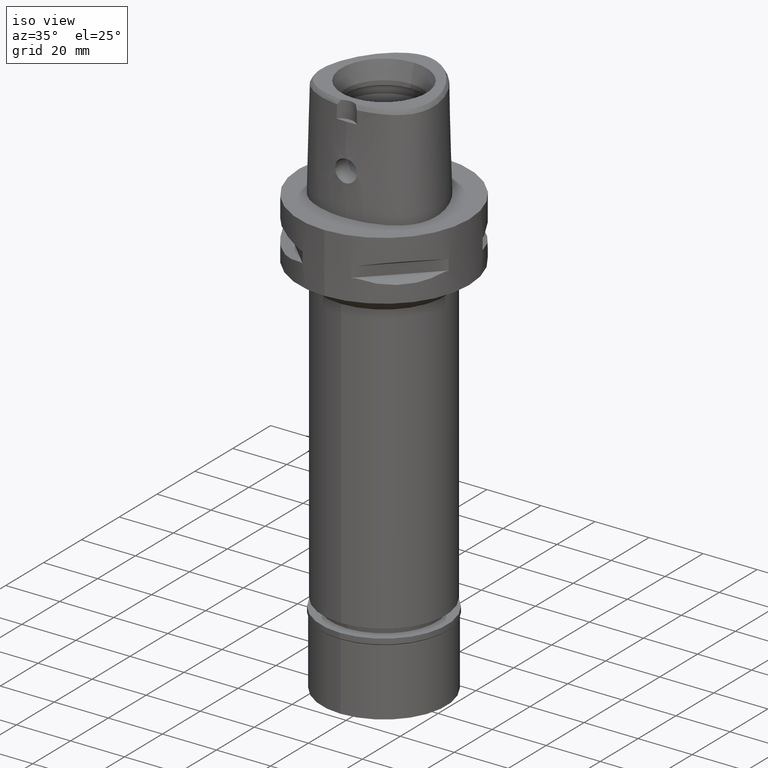
[diagram: clean part render]
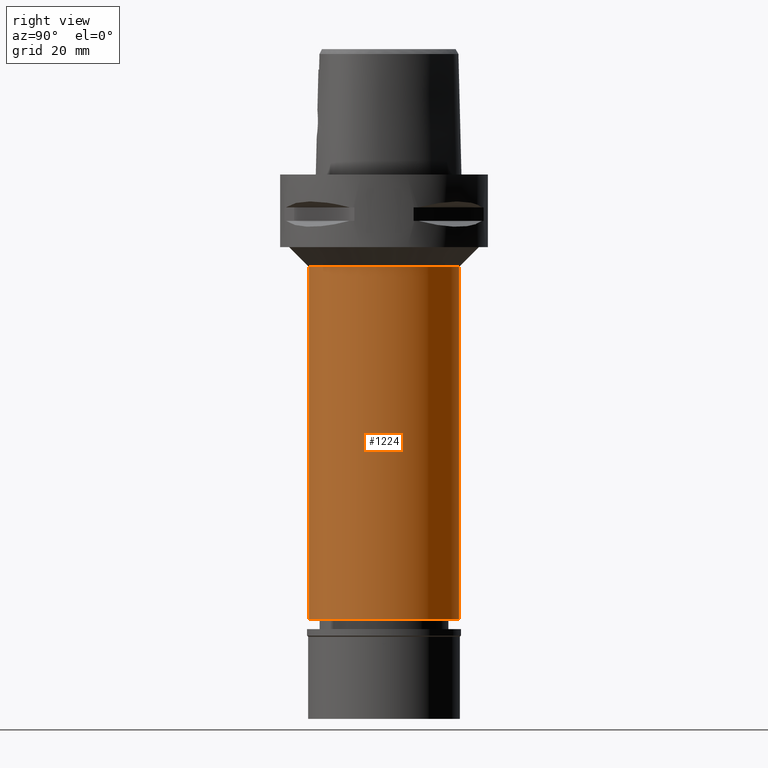
[diagram: tour spotlight — one face highlighted and labeled with its STEP entity id]
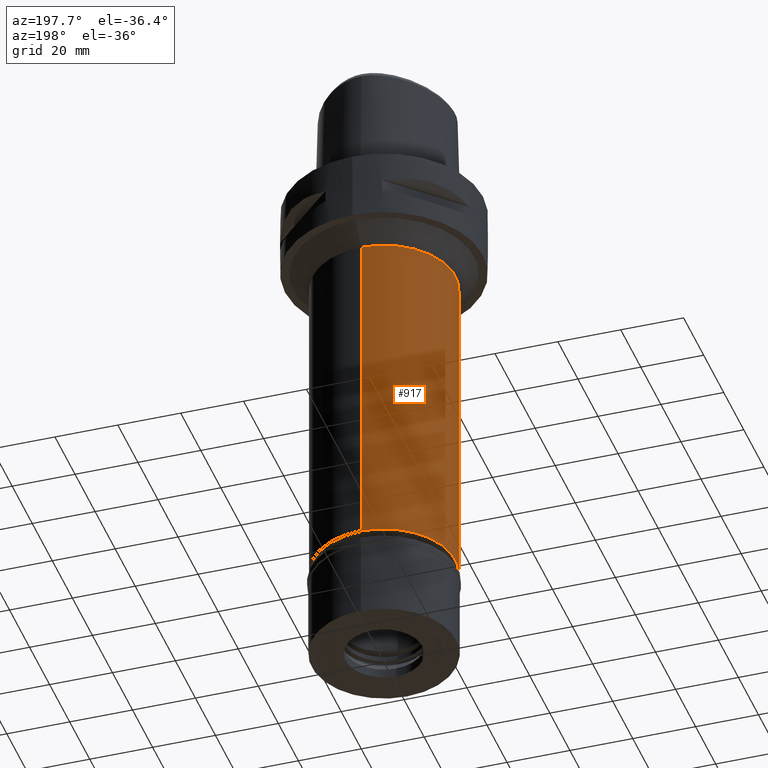
[diagram: tour spotlight — one face highlighted and labeled with its STEP entity id]
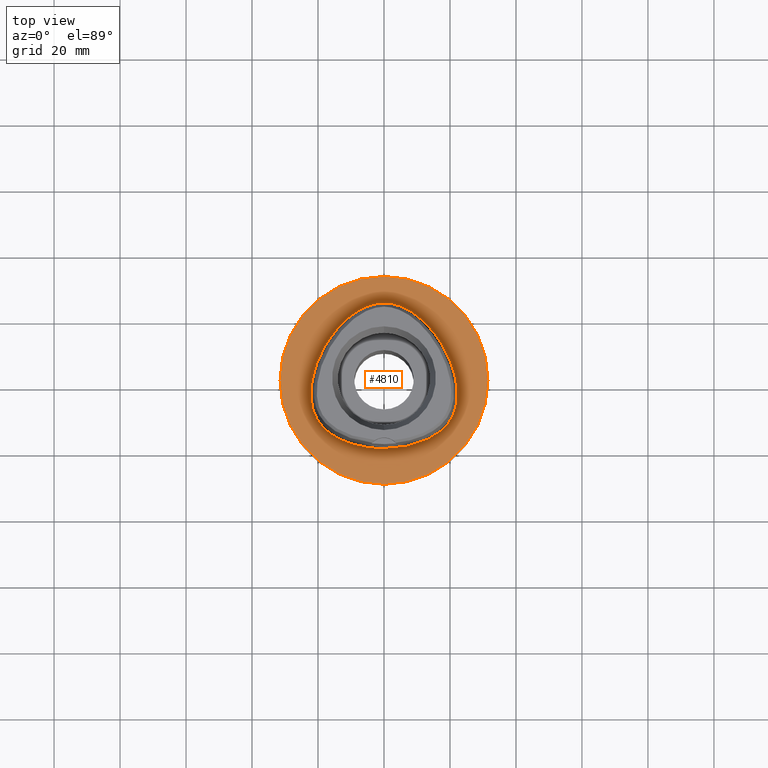
[diagram: tour spotlight — one face highlighted and labeled with its STEP entity id]
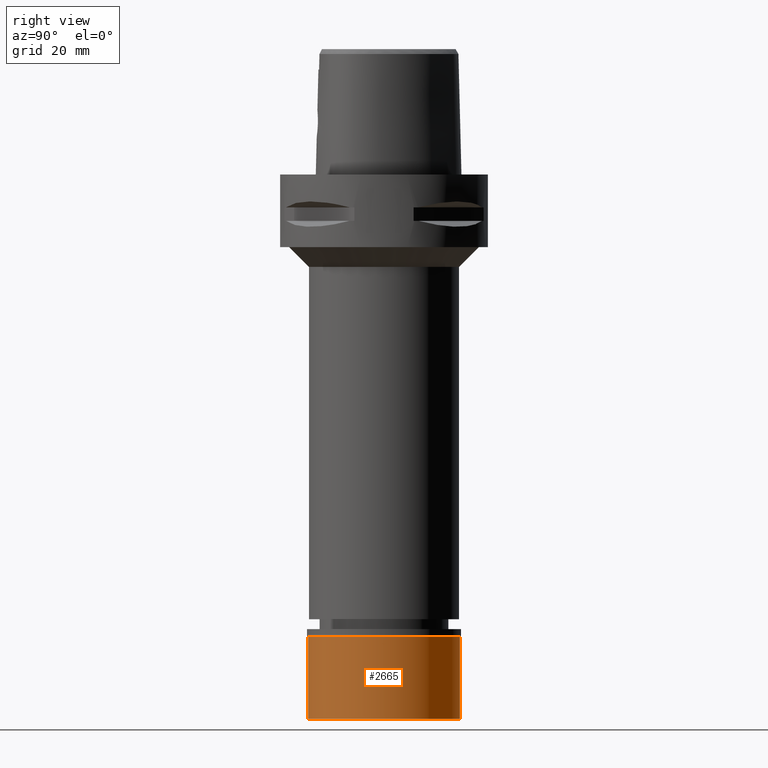
[diagram: tour spotlight — one face highlighted and labeled with its STEP entity id]
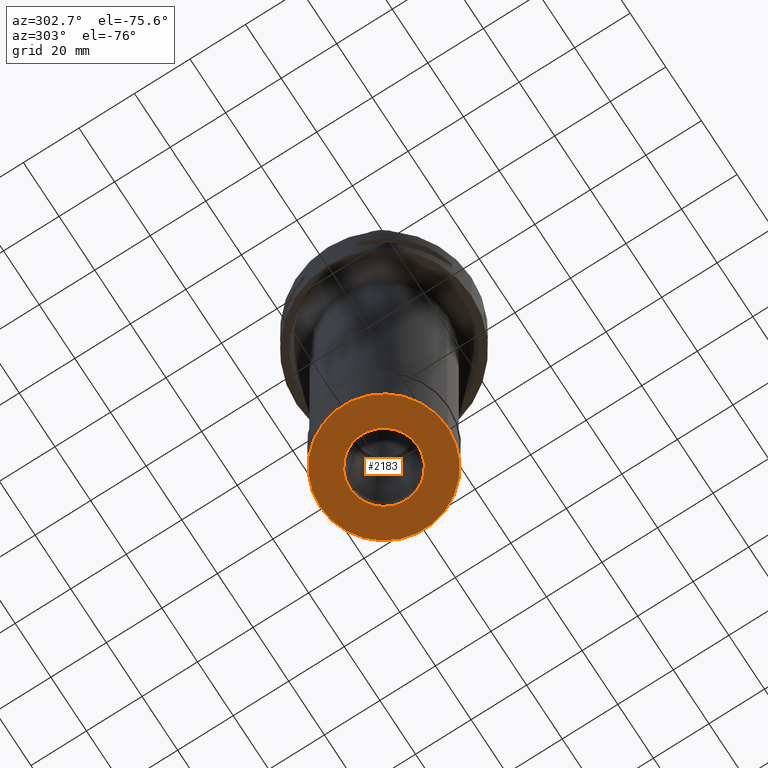
[diagram: tour spotlight — one face highlighted and labeled with its STEP entity id]
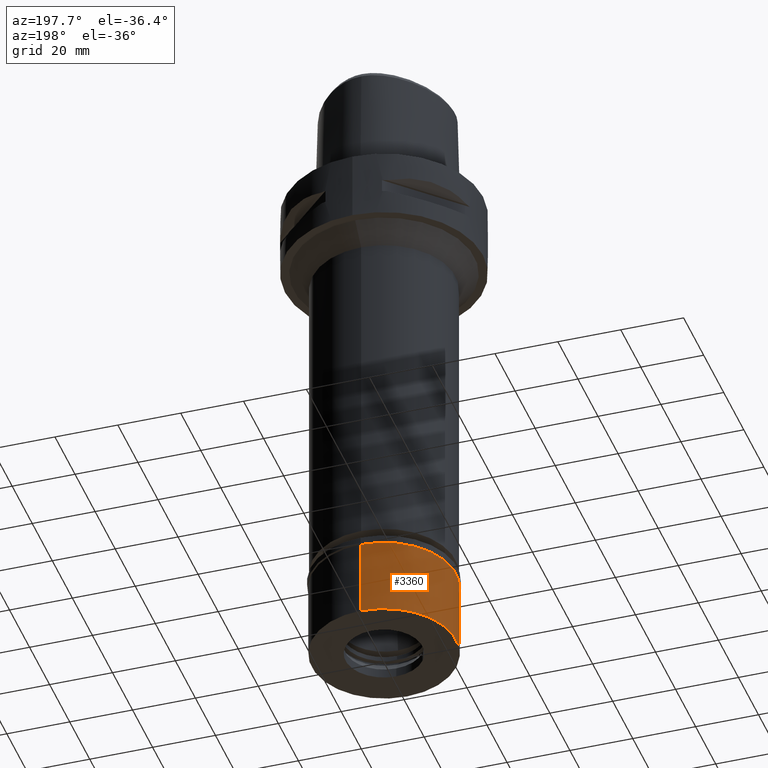
[diagram: tour spotlight — one face highlighted and labeled with its STEP entity id]
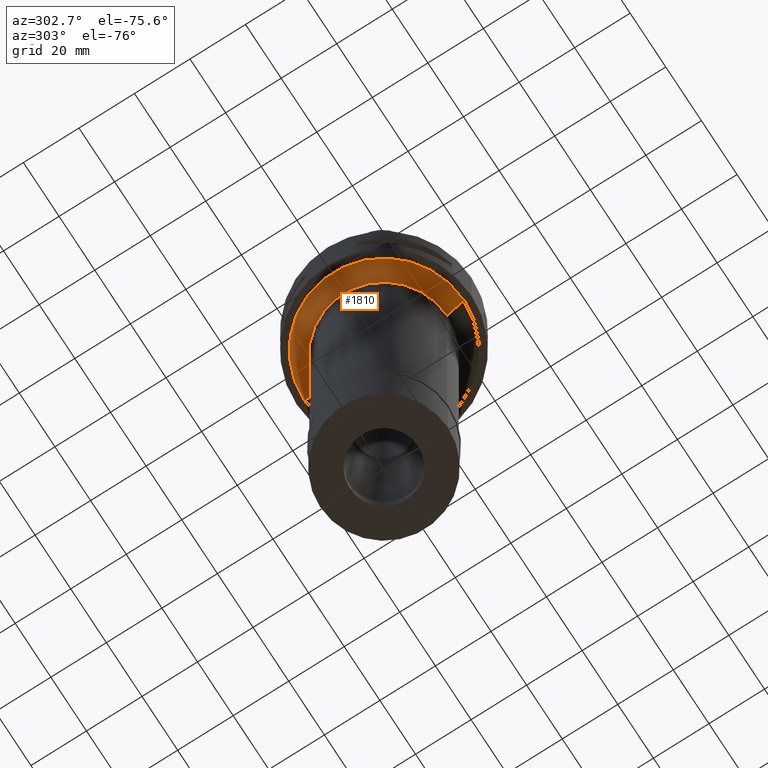
[diagram: tour spotlight — one face highlighted and labeled with its STEP entity id]
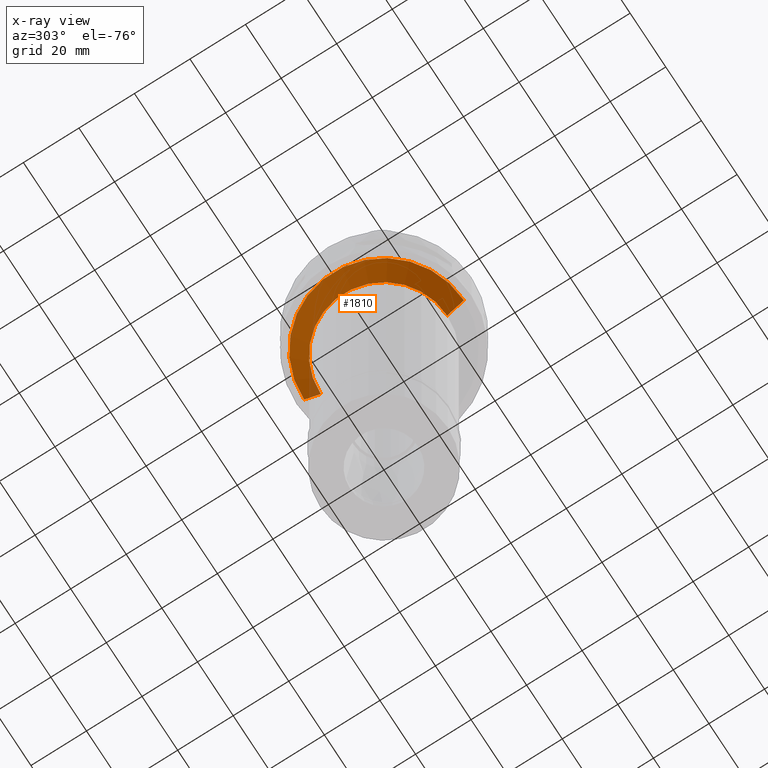
[diagram: x-ray of the same camera — body ghosted, this tour face saturated]
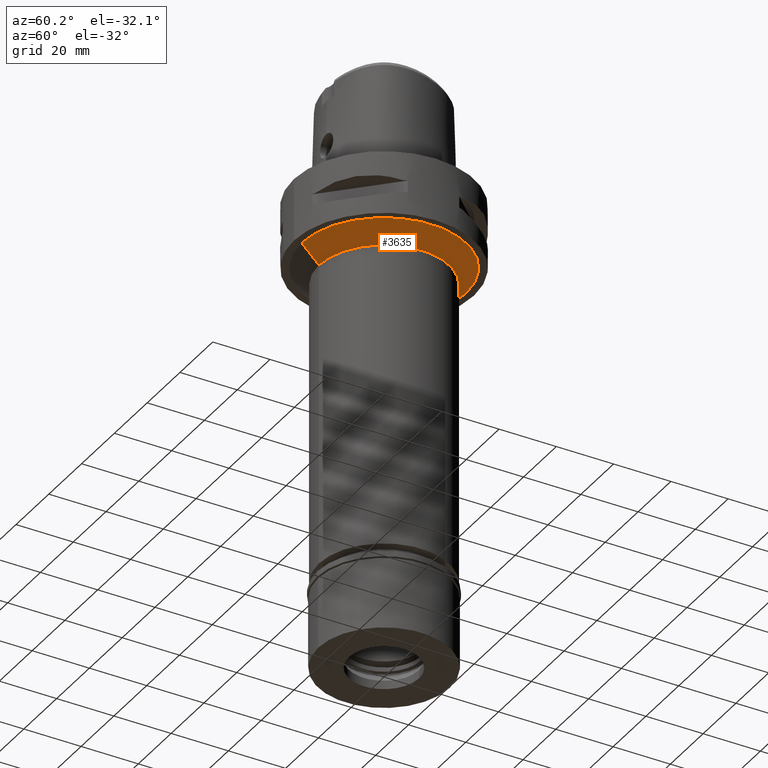
[diagram: tour spotlight — one face highlighted and labeled with its STEP entity id]
A machine part: a face-by-face anatomy tour. The part has 95 B-rep faces; the first image is the clean iso view, then the 8 largest visible faces are spotlighted one at a time (largest first), each with its STEP entity span.

Face 1 — right view, entity #1224. In plain terms, the highlighted cylindrical surface (partial cylindrical patch) has radius 22.75 mm, axis along (0, 0, -1).
Definition (entity closure, byte-faithful):
#91 = VECTOR ( 'NONE', #986, 1000.000000000000000 ) ;
#332 = DIRECTION ( 'NONE',  ( 0.0000000000000000000, -1.000000000000000000, 0.0000000000000000000 ) ) ;
#386 = AXIS2_PLACEMENT_3D ( 'NONE', #551, #2056, #899 ) ;
#402 = DIRECTION ( 'NONE',  ( 0.0000000000000000000, 0.0000000000000000000, -1.000000000000000000 ) ) ;
#407 = VECTOR ( 'NONE', #2217, 1000.000000000000000 ) ;
#551 = CARTESIAN_POINT ( 'NONE',  ( 0.0000000000000000000, 0.0000000000000000000, -28.00000000000000000 ) ) ;
#554 = AXIS2_PLACEMENT_3D ( 'NONE', #4143, #402, #1949 ) ;
#587 = ORIENTED_EDGE ( 'NONE', *, *, #2922, .T. ) ;
#669 = LINE ( 'NONE', #3377, #407 ) ;
#788 = CIRCLE ( 'NONE', #386, 22.75000000000000000 ) ;
#899 = DIRECTION ( 'NONE',  ( 0.0000000000000000000, 1.000000000000000000, 0.0000000000000000000 ) ) ;
#986 = DIRECTION ( 'NONE',  ( 0.0000000000000000000, 0.0000000000000000000, -1.000000000000000000 ) ) ;
#1032 = LINE ( 'NONE', #1386, #91 ) ;
#1049 = ORIENTED_EDGE ( 'NONE', *, *, #3112, .T. ) ;
#1219 = EDGE_CURVE ( 'NONE', #4034, #3096, #669, .T. ) ;
#1224 = ADVANCED_FACE ( 'NONE', ( #2321 ), #3786, .T. ) ;
#1386 = CARTESIAN_POINT ( 'NONE',  ( 0.0000000000000000000, 22.75000000000000000, -28.00000000000000000 ) ) ;
#1508 = CARTESIAN_POINT ( 'NONE',  ( 0.0000000000000000000, 22.75000000000000000, -28.00000000000000000 ) ) ;
#1823 = EDGE_LOOP ( 'NONE', ( #587, #2517, #1049, #4809 ) ) ;
#1949 = DIRECTION ( 'NONE',  ( 0.0000000000000000000, -1.000000000000000000, 0.0000000000000000000 ) ) ;
#2056 = DIRECTION ( 'NONE',  ( 0.0000000000000000000, 0.0000000000000000000, -1.000000000000000000 ) ) ;
#2090 = EDGE_CURVE ( 'NONE', #4462, #2373, #1032, .T. ) ;
#2217 = DIRECTION ( 'NONE',  ( 0.0000000000000000000, 0.0000000000000000000, -1.000000000000000000 ) ) ;
#2321 = FACE_OUTER_BOUND ( 'NONE', #1823, .T. ) ;
#2373 = VERTEX_POINT ( 'NONE', #2686 ) ;
#2517 = ORIENTED_EDGE ( 'NONE', *, *, #1219, .T. ) ;
#2686 = CARTESIAN_POINT ( 'NONE',  ( 0.0000000000000000000, 22.75000000000000000, -134.8000000000000114 ) ) ;
#2922 = EDGE_CURVE ( 'NONE', #4462, #4034, #788, .T. ) ;
#3096 = VERTEX_POINT ( 'NONE', #4026 ) ;
#3112 = EDGE_CURVE ( 'NONE', #3096, #2373, #4479, .T. ) ;
#3377 = CARTESIAN_POINT ( 'NONE',  ( 0.0000000000000000000, -22.75000000000000000, -28.00000000000000000 ) ) ;
#3387 = CARTESIAN_POINT ( 'NONE',  ( 0.0000000000000000000, -22.75000000000000000, -28.00000000000000000 ) ) ;
#3604 = AXIS2_PLACEMENT_3D ( 'NONE', #4146, #4432, #332 ) ;
#3786 = CYLINDRICAL_SURFACE ( 'NONE', #554, 22.75000000000000000 ) ;
#4026 = CARTESIAN_POINT ( 'NONE',  ( 0.0000000000000000000, -22.75000000000000000, -134.8000000000000114 ) ) ;
#4034 = VERTEX_POINT ( 'NONE', #3387 ) ;
#4143 = CARTESIAN_POINT ( 'NONE',  ( 0.0000000000000000000, 0.0000000000000000000, 7.700000000000000178 ) ) ;
#4146 = CARTESIAN_POINT ( 'NONE',  ( 0.0000000000000000000, 0.0000000000000000000, -134.8000000000000114 ) ) ;
#4432 = DIRECTION ( 'NONE',  ( 0.0000000000000000000, 0.0000000000000000000, 1.000000000000000000 ) ) ;
#4462 = VERTEX_POINT ( 'NONE', #1508 ) ;
#4479 = CIRCLE ( 'NONE', #3604, 22.75000000000000000 ) ;
#4809 = ORIENTED_EDGE ( 'NONE', *, *, #2090, .F. ) ;

Face 2 — auxiliary view, entity #917. In plain terms, the highlighted cylindrical surface (partial cylindrical patch) has radius 22.75 mm, axis along (0, 0, -1).
Definition (entity closure, byte-faithful):
#21 = DIRECTION ( 'NONE',  ( 0.0000000000000000000, 0.0000000000000000000, -1.000000000000000000 ) ) ;
#91 = VECTOR ( 'NONE', #986, 1000.000000000000000 ) ;
#139 = DIRECTION ( 'NONE',  ( 0.0000000000000000000, 0.0000000000000000000, 1.000000000000000000 ) ) ;
#330 = EDGE_CURVE ( 'NONE', #4034, #4462, #2425, .T. ) ;
#407 = VECTOR ( 'NONE', #2217, 1000.000000000000000 ) ;
#455 = CARTESIAN_POINT ( 'NONE',  ( 0.0000000000000000000, 0.0000000000000000000, 7.700000000000000178 ) ) ;
#594 = DIRECTION ( 'NONE',  ( 0.0000000000000000000, 0.0000000000000000000, -1.000000000000000000 ) ) ;
#634 = AXIS2_PLACEMENT_3D ( 'NONE', #455, #594, #4798 ) ;
#669 = LINE ( 'NONE', #3377, #407 ) ;
#895 = AXIS2_PLACEMENT_3D ( 'NONE', #2049, #139, #3179 ) ;
#917 = ADVANCED_FACE ( 'NONE', ( #2852 ), #2478, .T. ) ;
#986 = DIRECTION ( 'NONE',  ( 0.0000000000000000000, 0.0000000000000000000, -1.000000000000000000 ) ) ;
#1032 = LINE ( 'NONE', #1386, #91 ) ;
#1219 = EDGE_CURVE ( 'NONE', #4034, #3096, #669, .T. ) ;
#1249 = ORIENTED_EDGE ( 'NONE', *, *, #1219, .F. ) ;
#1372 = CIRCLE ( 'NONE', #895, 22.75000000000000000 ) ;
#1374 = EDGE_CURVE ( 'NONE', #2373, #3096, #1372, .T. ) ;
#1386 = CARTESIAN_POINT ( 'NONE',  ( 0.0000000000000000000, 22.75000000000000000, -28.00000000000000000 ) ) ;
#1508 = CARTESIAN_POINT ( 'NONE',  ( 0.0000000000000000000, 22.75000000000000000, -28.00000000000000000 ) ) ;
#1580 = EDGE_LOOP ( 'NONE', ( #3599, #1249, #3648, #1946 ) ) ;
#1616 = AXIS2_PLACEMENT_3D ( 'NONE', #3429, #21, #4672 ) ;
#1946 = ORIENTED_EDGE ( 'NONE', *, *, #2090, .T. ) ;
#2049 = CARTESIAN_POINT ( 'NONE',  ( 0.0000000000000000000, 0.0000000000000000000, -134.8000000000000114 ) ) ;
#2090 = EDGE_CURVE ( 'NONE', #4462, #2373, #1032, .T. ) ;
#2217 = DIRECTION ( 'NONE',  ( 0.0000000000000000000, 0.0000000000000000000, -1.000000000000000000 ) ) ;
#2373 = VERTEX_POINT ( 'NONE', #2686 ) ;
#2425 = CIRCLE ( 'NONE', #1616, 22.75000000000000000 ) ;
#2478 = CYLINDRICAL_SURFACE ( 'NONE', #634, 22.75000000000000000 ) ;
#2686 = CARTESIAN_POINT ( 'NONE',  ( 0.0000000000000000000, 22.75000000000000000, -134.8000000000000114 ) ) ;
#2852 = FACE_OUTER_BOUND ( 'NONE', #1580, .T. ) ;
#3096 = VERTEX_POINT ( 'NONE', #4026 ) ;
#3179 = DIRECTION ( 'NONE',  ( 0.0000000000000000000, 1.000000000000000000, 0.0000000000000000000 ) ) ;
#3377 = CARTESIAN_POINT ( 'NONE',  ( 0.0000000000000000000, -22.75000000000000000, -28.00000000000000000 ) ) ;
#3387 = CARTESIAN_POINT ( 'NONE',  ( 0.0000000000000000000, -22.75000000000000000, -28.00000000000000000 ) ) ;
#3429 = CARTESIAN_POINT ( 'NONE',  ( 0.0000000000000000000, 0.0000000000000000000, -28.00000000000000000 ) ) ;
#3599 = ORIENTED_EDGE ( 'NONE', *, *, #1374, .T. ) ;
#3648 = ORIENTED_EDGE ( 'NONE', *, *, #330, .T. ) ;
#4026 = CARTESIAN_POINT ( 'NONE',  ( 0.0000000000000000000, -22.75000000000000000, -134.8000000000000114 ) ) ;
#4034 = VERTEX_POINT ( 'NONE', #3387 ) ;
#4462 = VERTEX_POINT ( 'NONE', #1508 ) ;
#4672 = DIRECTION ( 'NONE',  ( 0.0000000000000000000, -1.000000000000000000, 0.0000000000000000000 ) ) ;
#4798 = DIRECTION ( 'NONE',  ( 0.0000000000000000000, -1.000000000000000000, 0.0000000000000000000 ) ) ;

Face 3 — top view, entity #4810. In plain terms, the highlighted planar face has unit normal (0, 0, -1).
Definition (entity closure, byte-faithful):
#149 = DIRECTION ( 'NONE',  ( 0.0000000000000000000, 0.0000000000000000000, -1.000000000000000000 ) ) ;
#277 = CARTESIAN_POINT ( 'NONE',  ( -20.74942743326078798, 4.657187508816051036, -1.034246440145001125E-06 ) ) ;
#300 = CARTESIAN_POINT ( 'NONE',  ( 21.97832647786460925, -0.2810937500000018630, -1.531435568635775013E-14 ) ) ;
#311 = AXIS2_PLACEMENT_3D ( 'NONE', #1708, #149, #3622 ) ;
#318 = VERTEX_POINT ( 'NONE', #2672 ) ;
#419 = CARTESIAN_POINT ( 'NONE',  ( 0.0000000000000000000, 0.0000000000000000000, 0.0000000000000000000 ) ) ;
#425 = CARTESIAN_POINT ( 'NONE',  ( 2.564517726975463763, 23.29328124999227256, -1.531435568635775013E-14 ) ) ;
#542 = CIRCLE ( 'NONE', #311, 31.50000000000000000 ) ;
#637 = ORIENTED_EDGE ( 'NONE', *, *, #3810, .F. ) ;
#643 = CARTESIAN_POINT ( 'NONE',  ( -20.34961800800771314, -11.74885743481933531, -1.034246440145001125E-06 ) ) ;
#668 = CARTESIAN_POINT ( 'NONE',  ( 20.93173252212098134, -10.60431640624750216, -1.531435568635775013E-14 ) ) ;
#689 = CARTESIAN_POINT ( 'NONE',  ( -7.571159447450471980, 21.31457033488066699, -1.034246440145001125E-06 ) ) ;
#803 = CARTESIAN_POINT ( 'NONE',  ( 5.098437017284251027, 22.52602539062982601, -1.531435568635775013E-14 ) ) ;
#827 = CARTESIAN_POINT ( 'NONE',  ( -2.113823674601348124, -20.67500002585100560, -1.034246440145001125E-06 ) ) ;
#996 = VERTEX_POINT ( 'NONE', #2178 ) ;
#1029 = CARTESIAN_POINT ( 'NONE',  ( -22.05732876892827576, -6.847636722443549040, -1.034246440145001125E-06 ) ) ;
#1063 = B_SPLINE_CURVE_WITH_KNOTS ( 'NONE', 3,
 ( #2667, #3809, #3350, #1948, #3064, #1541, #4606, #3456, #4116, #668, #2216, #1457, #3731, #300, #2986, #4715, #3867, #2015, #4273, #803, #425, #4643, #2429 ),
 .UNSPECIFIED., .F., .F.,
 ( 4, 1, 1, 1, 1, 1, 1, 1, 1, 1, 1, 1, 1, 1, 1, 1, 1, 1, 1, 1, 4 ),
 ( 0.0000000000000000000, 0.08333333333337000770, 0.1666666666667000196, 0.2083333333333000081, 0.2500000000000000000, 0.2916666666666999919, 0.3124999999998999689, 0.3333333333332000326, 0.3541666666666000163, 0.3749999999998999689, 0.4166666666666000163, 0.4583333333332000326, 0.4999999999998999689, 0.5833333333331000015, 0.6666666666664999852, 0.7499999999998000488, 0.8333333333329999704, 0.8749999999997000177, 0.9166666666664000651, 0.9583333333329999704, 1.000000000000000000 ),
 .UNSPECIFIED. ) ;
#1085 = ORIENTED_EDGE ( 'NONE', *, *, #2255, .F. ) ;
#1122 = B_SPLINE_CURVE_WITH_KNOTS ( 'NONE', 3,
 ( #4173, #2695, #3030, #4521, #689, #3299, #4574, #2664, #277, #4841, #1404, #1029, #2561, #4090, #643, #3322, #2954, #2391, #2349, #3479, #3527, #827, #4665 ),
 .UNSPECIFIED., .F., .F.,
 ( 4, 1, 1, 1, 1, 1, 1, 1, 1, 1, 1, 1, 1, 1, 1, 1, 1, 1, 1, 1, 4 ),
 ( 0.0000000000000000000, 0.04166666666724999635, 0.08333333333387001052, 0.1250000000004999889, 0.1666666666672000086, 0.2500000000004000134, 0.3333333333335999904, 0.4166666666670000296, 0.5000000000001999512, 0.5416666666668999985, 0.5833333333333999837, 0.6250000000001000311, 0.6458333333333999837, 0.6666666666667000474, 0.6875000000000000000, 0.7083333333333000637, 0.7500000000000000000, 0.7916666666666000163, 0.8333333333332000326, 0.9166666666664999852, 1.000000000000000000 ),
 .UNSPECIFIED. ) ;
#1131 = DIRECTION ( 'NONE',  ( 0.0000000000000000000, -1.000000000000000000, 0.0000000000000000000 ) ) ;
#1345 = ORIENTED_EDGE ( 'NONE', *, *, #1492, .F. ) ;
#1349 = AXIS2_PLACEMENT_3D ( 'NONE', #419, #3473, #1131 ) ;
#1381 = VERTEX_POINT ( 'NONE', #3280 ) ;
#1404 = CARTESIAN_POINT ( 'NONE',  ( -22.24453910448135474, -4.100468749847680172, -1.034246440145001125E-06 ) ) ;
#1457 = CARTESIAN_POINT ( 'NONE',  ( 22.05732874322212922, -6.847636718749212648, -1.531435568635775013E-14 ) ) ;
#1492 = EDGE_CURVE ( 'NONE', #996, #1381, #1122, .T. ) ;
#1541 = CARTESIAN_POINT ( 'NONE',  ( 16.95889172594019456, -15.67838867187385965, -1.531435568635775013E-14 ) ) ;
#1577 = ORIENTED_EDGE ( 'NONE', *, *, #2231, .F. ) ;
#1638 = DIRECTION ( 'NONE',  ( 0.0000000000000000000, 0.0000000000000000000, -1.000000000000000000 ) ) ;
#1708 = CARTESIAN_POINT ( 'NONE',  ( 0.0000000000000000000, 0.0000000000000000000, 0.0000000000000000000 ) ) ;
#1948 = CARTESIAN_POINT ( 'NONE',  ( 11.23259756727999203, -18.89324218749384698, -1.531435568635775013E-14 ) ) ;
#2015 = CARTESIAN_POINT ( 'NONE',  ( 10.74572891059309043, 19.17433593749962384, -1.531435568635775013E-14 ) ) ;
#2178 = CARTESIAN_POINT ( 'NONE',  ( 3.796789054058000055E-11, 23.47499999999000053, 6.972200594645999482E-14 ) ) ;
#2216 = CARTESIAN_POINT ( 'NONE',  ( 21.55524826009519401, -8.996025390624902585, -1.531435568635775013E-14 ) ) ;
#2231 = EDGE_CURVE ( 'NONE', #1381, #996, #1063, .T. ) ;
#2253 = AXIS2_PLACEMENT_3D ( 'NONE', #2791, #1638, #2820 ) ;
#2255 = EDGE_CURVE ( 'NONE', #318, #3007, #3354, .T. ) ;
#2289 = FACE_BOUND ( 'NONE', #3566, .T. ) ;
#2349 = CARTESIAN_POINT ( 'NONE',  ( -14.67337965703199920, -17.21410158503573840, -1.034246440145001125E-06 ) ) ;
#2391 = CARTESIAN_POINT ( 'NONE',  ( -16.95889174198939386, -15.67838869228108045, -1.034246440145001125E-06 ) ) ;
#2429 = CARTESIAN_POINT ( 'NONE',  ( 3.796789054058000055E-11, 23.47499999999000053, 6.972200594645999482E-14 ) ) ;
#2561 = CARTESIAN_POINT ( 'NONE',  ( -21.55524828496530532, -8.996025398017126307, -1.034246440145001125E-06 ) ) ;
#2664 = CARTESIAN_POINT ( 'NONE',  ( -18.06826690777731415, 10.43171876299925849, -1.034246440145001125E-06 ) ) ;
#2667 = CARTESIAN_POINT ( 'NONE',  ( -5.543970305236001200E-12, -20.67499999999999716, 7.264559324463998182E-14 ) ) ;
#2672 = CARTESIAN_POINT ( 'NONE',  ( 0.0000000000000000000, -31.50000000000000000, 0.0000000000000000000 ) ) ;
#2695 = CARTESIAN_POINT ( 'NONE',  ( -0.8548392441382539619, 23.47500002585262280, -1.034246440145001125E-06 ) ) ;
#2791 = CARTESIAN_POINT ( 'NONE',  ( 0.0000000000000000000, 0.0000000000000000000, 0.0000000000000000000 ) ) ;
#2820 = DIRECTION ( 'NONE',  ( 0.0000000000000000000, -1.000000000000000000, 0.0000000000000000000 ) ) ;
#2954 = CARTESIAN_POINT ( 'NONE',  ( -18.56841067026436320, -14.16937990065208552, -1.034246440145001125E-06 ) ) ;
#2986 = CARTESIAN_POINT ( 'NONE',  ( 20.74942740879961889, 4.657187500000079083, -1.531435568635775013E-14 ) ) ;
#3007 = VERTEX_POINT ( 'NONE', #4919 ) ;
#3026 = FACE_OUTER_BOUND ( 'NONE', #4134, .T. ) ;
#3030 = CARTESIAN_POINT ( 'NONE',  ( -2.564517732271363482, 23.29328127546035887, -1.034246440145001125E-06 ) ) ;
#3064 = CARTESIAN_POINT ( 'NONE',  ( 14.67337964419941443, -17.21410156249711676, -1.531435568635775013E-14 ) ) ;
#3280 = CARTESIAN_POINT ( 'NONE',  ( -5.543970305236001200E-12, -20.67499999999999716, 7.264559324463998182E-14 ) ) ;
#3299 = CARTESIAN_POINT ( 'NONE',  ( -10.74572892731183948, 19.17433595741139030, -1.034246440145001125E-06 ) ) ;
#3322 = CARTESIAN_POINT ( 'NONE',  ( -19.64947367958555446, -12.82525392147471166, -1.034246440145001125E-06 ) ) ;
#3350 = CARTESIAN_POINT ( 'NONE',  ( 6.341471019210932702, -20.29812500000038611, -1.531435568635775013E-14 ) ) ;
#3354 = CIRCLE ( 'NONE', #2253, 31.50000000000000000 ) ;
#3456 = CARTESIAN_POINT ( 'NONE',  ( 19.64947365863808315, -12.82525390625365524, -1.531435568635775013E-14 ) ) ;
#3473 = DIRECTION ( 'NONE',  ( 0.0000000000000000000, 0.0000000000000000000, -1.000000000000000000 ) ) ;
#3479 = CARTESIAN_POINT ( 'NONE',  ( -11.23259757615545773, -18.89324221193533049, -1.034246440145001125E-06 ) ) ;
#3527 = CARTESIAN_POINT ( 'NONE',  ( -6.341471023805363316, -20.29812502559607168, -1.034246440145001125E-06 ) ) ;
#3566 = EDGE_LOOP ( 'NONE', ( #1345, #1577 ) ) ;
#3622 = DIRECTION ( 'NONE',  ( 0.0000000000000000000, 1.000000000000000000, 0.0000000000000000000 ) ) ;
#3731 = CARTESIAN_POINT ( 'NONE',  ( 22.24453907855193080, -4.100468750000058726, -1.531435568635775013E-14 ) ) ;
#3809 = CARTESIAN_POINT ( 'NONE',  ( 2.113823673067697140, -20.67499999999467164, -1.531435568635775013E-14 ) ) ;
#3810 = EDGE_CURVE ( 'NONE', #3007, #318, #542, .T. ) ;
#3867 = CARTESIAN_POINT ( 'NONE',  ( 14.40795638958557134, 15.64093750000557570, -1.531435568635775013E-14 ) ) ;
#4090 = CARTESIAN_POINT ( 'NONE',  ( -20.93173254577869002, -10.60431641678662551, -1.034246440145001125E-06 ) ) ;
#4116 = CARTESIAN_POINT ( 'NONE',  ( 20.34961798557288759, -11.74885742187038495, -1.531435568635775013E-14 ) ) ;
#4134 = EDGE_LOOP ( 'NONE', ( #637, #1085 ) ) ;
#4173 = CARTESIAN_POINT ( 'NONE',  ( 3.796789054058000055E-11, 23.47499999999000053, 6.972200594645999482E-14 ) ) ;
#4273 = CARTESIAN_POINT ( 'NONE',  ( 7.571159434350442474, 21.31457031249500389, -1.531435568635775013E-14 ) ) ;
#4521 = CARTESIAN_POINT ( 'NONE',  ( -5.098437026934316663, 22.52602541473402553, -1.034246440145001125E-06 ) ) ;
#4570 = PLANE ( 'NONE',  #1349 ) ;
#4574 = CARTESIAN_POINT ( 'NONE',  ( -14.40795640944390321, 15.64093751677335042, -1.034246440145001125E-06 ) ) ;
#4606 = CARTESIAN_POINT ( 'NONE',  ( 18.56841065141904323, -14.16937988280595206, -1.531435568635775013E-14 ) ) ;
#4643 = CARTESIAN_POINT ( 'NONE',  ( 0.8548392423473937241, 23.47500000000096421, -1.531435568635775013E-14 ) ) ;
#4665 = CARTESIAN_POINT ( 'NONE',  ( -5.543970305236001200E-12, -20.67499999999999716, 7.264559324463998182E-14 ) ) ;
#4715 = CARTESIAN_POINT ( 'NONE',  ( 18.06826688527134550, 10.43171874999923077, -1.531435568635775013E-14 ) ) ;
#4810 = ADVANCED_FACE ( 'NONE', ( #3026, #2289 ), #4570, .F. ) ;
#4841 = CARTESIAN_POINT ( 'NONE',  ( -21.97832650346823868, -0.2810937454764914079, -1.034246440145001125E-06 ) ) ;
#4919 = CARTESIAN_POINT ( 'NONE',  ( 0.0000000000000000000, 31.50000000000000000, 0.0000000000000000000 ) ) ;

Face 4 — right view, entity #2665. In plain terms, the highlighted cylindrical surface (partial cylindrical patch) has radius 23 mm, axis along (0, 0, -1).
Definition (entity closure, byte-faithful):
#9 = CARTESIAN_POINT ( 'NONE',  ( 0.0000000000000000000, 23.00000000000000000, -2.299999999999999822 ) ) ;
#115 = DIRECTION ( 'NONE',  ( 0.0000000000000000000, 0.0000000000000000000, -1.000000000000000000 ) ) ;
#176 = VECTOR ( 'NONE', #3191, 1000.000000000000000 ) ;
#242 = VERTEX_POINT ( 'NONE', #835 ) ;
#293 = CARTESIAN_POINT ( 'NONE',  ( 0.0000000000000000000, -23.00000000000000000, -27.19999999999999929 ) ) ;
#457 = CARTESIAN_POINT ( 'NONE',  ( 0.0000000000000000000, -23.00000000000000000, -2.299999999999999822 ) ) ;
#520 = DIRECTION ( 'NONE',  ( 0.0000000000000000000, 0.0000000000000000000, -1.000000000000000000 ) ) ;
#754 = EDGE_CURVE ( 'NONE', #2891, #4681, #2024, .T. ) ;
#767 = EDGE_LOOP ( 'NONE', ( #1255, #3285, #3559, #4709 ) ) ;
#835 = CARTESIAN_POINT ( 'NONE',  ( 0.0000000000000000000, 23.00000000000000000, -27.19999999999999929 ) ) ;
#948 = DIRECTION ( 'NONE',  ( 0.0000000000000000000, 0.0000000000000000000, 1.000000000000000000 ) ) ;
#975 = DIRECTION ( 'NONE',  ( 0.0000000000000000000, -1.000000000000000000, 0.0000000000000000000 ) ) ;
#1197 = AXIS2_PLACEMENT_3D ( 'NONE', #2113, #948, #2489 ) ;
#1255 = ORIENTED_EDGE ( 'NONE', *, *, #1870, .T. ) ;
#1257 = CYLINDRICAL_SURFACE ( 'NONE', #1921, 23.00000000000000000 ) ;
#1870 = EDGE_CURVE ( 'NONE', #4849, #2891, #1947, .T. ) ;
#1921 = AXIS2_PLACEMENT_3D ( 'NONE', #3168, #3601, #975 ) ;
#1947 = CIRCLE ( 'NONE', #4739, 23.00000000000000000 ) ;
#2024 = LINE ( 'NONE', #3536, #2501 ) ;
#2113 = CARTESIAN_POINT ( 'NONE',  ( 0.0000000000000000000, 0.0000000000000000000, -27.19999999999999929 ) ) ;
#2406 = CARTESIAN_POINT ( 'NONE',  ( 0.0000000000000000000, 0.0000000000000000000, -2.299999999999999822 ) ) ;
#2489 = DIRECTION ( 'NONE',  ( 0.0000000000000000000, -1.000000000000000000, 0.0000000000000000000 ) ) ;
#2501 = VECTOR ( 'NONE', #115, 1000.000000000000000 ) ;
#2665 = ADVANCED_FACE ( 'NONE', ( #2786 ), #1257, .T. ) ;
#2716 = EDGE_CURVE ( 'NONE', #4681, #242, #3598, .T. ) ;
#2774 = DIRECTION ( 'NONE',  ( 0.0000000000000000000, 1.000000000000000000, 0.0000000000000000000 ) ) ;
#2786 = FACE_OUTER_BOUND ( 'NONE', #767, .T. ) ;
#2891 = VERTEX_POINT ( 'NONE', #457 ) ;
#2905 = EDGE_CURVE ( 'NONE', #4849, #242, #3620, .T. ) ;
#3168 = CARTESIAN_POINT ( 'NONE',  ( 0.0000000000000000000, 0.0000000000000000000, 0.0000000000000000000 ) ) ;
#3191 = DIRECTION ( 'NONE',  ( 0.0000000000000000000, 0.0000000000000000000, -1.000000000000000000 ) ) ;
#3285 = ORIENTED_EDGE ( 'NONE', *, *, #754, .T. ) ;
#3536 = CARTESIAN_POINT ( 'NONE',  ( 0.0000000000000000000, -23.00000000000000000, -2.299999999999999822 ) ) ;
#3559 = ORIENTED_EDGE ( 'NONE', *, *, #2716, .T. ) ;
#3598 = CIRCLE ( 'NONE', #1197, 23.00000000000000000 ) ;
#3601 = DIRECTION ( 'NONE',  ( 0.0000000000000000000, 0.0000000000000000000, -1.000000000000000000 ) ) ;
#3620 = LINE ( 'NONE', #4337, #176 ) ;
#4337 = CARTESIAN_POINT ( 'NONE',  ( 0.0000000000000000000, 23.00000000000000000, -2.299999999999999822 ) ) ;
#4681 = VERTEX_POINT ( 'NONE', #293 ) ;
#4709 = ORIENTED_EDGE ( 'NONE', *, *, #2905, .F. ) ;
#4739 = AXIS2_PLACEMENT_3D ( 'NONE', #2406, #520, #2774 ) ;
#4849 = VERTEX_POINT ( 'NONE', #9 ) ;

Face 5 — auxiliary view, entity #2183. In plain terms, the highlighted planar face has unit normal (0, 0, -1).
Definition (entity closure, byte-faithful):
#109 = DIRECTION ( 'NONE',  ( 0.0000000000000000000, 0.0000000000000000000, -1.000000000000000000 ) ) ;
#209 = CARTESIAN_POINT ( 'NONE',  ( 0.0000000000000000000, 0.0000000000000000000, -27.19999999999999929 ) ) ;
#228 = DIRECTION ( 'NONE',  ( 0.0000000000000000000, 0.0000000000000000000, -1.000000000000000000 ) ) ;
#242 = VERTEX_POINT ( 'NONE', #835 ) ;
#293 = CARTESIAN_POINT ( 'NONE',  ( 0.0000000000000000000, -23.00000000000000000, -27.19999999999999929 ) ) ;
#547 = CIRCLE ( 'NONE', #4256, 12.25000000000000000 ) ;
#588 = FACE_BOUND ( 'NONE', #2479, .T. ) ;
#835 = CARTESIAN_POINT ( 'NONE',  ( 0.0000000000000000000, 23.00000000000000000, -27.19999999999999929 ) ) ;
#948 = DIRECTION ( 'NONE',  ( 0.0000000000000000000, 0.0000000000000000000, 1.000000000000000000 ) ) ;
#994 = DIRECTION ( 'NONE',  ( 0.0000000000000000000, 0.0000000000000000000, 1.000000000000000000 ) ) ;
#1173 = ORIENTED_EDGE ( 'NONE', *, *, #3143, .F. ) ;
#1182 = CARTESIAN_POINT ( 'NONE',  ( 0.0000000000000000000, 12.25000000000000000, -27.19999999999999929 ) ) ;
#1197 = AXIS2_PLACEMENT_3D ( 'NONE', #2113, #948, #2489 ) ;
#1261 = DIRECTION ( 'NONE',  ( 0.0000000000000000000, 1.000000000000000000, 0.0000000000000000000 ) ) ;
#1335 = DIRECTION ( 'NONE',  ( 0.0000000000000000000, -1.000000000000000000, 0.0000000000000000000 ) ) ;
#1355 = AXIS2_PLACEMENT_3D ( 'NONE', #2617, #994, #3260 ) ;
#1416 = ORIENTED_EDGE ( 'NONE', *, *, #2305, .F. ) ;
#1469 = VERTEX_POINT ( 'NONE', #2614 ) ;
#1533 = EDGE_LOOP ( 'NONE', ( #1173, #2909 ) ) ;
#1690 = CIRCLE ( 'NONE', #3684, 12.25000000000000000 ) ;
#2100 = FACE_OUTER_BOUND ( 'NONE', #1533, .T. ) ;
#2113 = CARTESIAN_POINT ( 'NONE',  ( 0.0000000000000000000, 0.0000000000000000000, -27.19999999999999929 ) ) ;
#2183 = ADVANCED_FACE ( 'NONE', ( #2100, #588 ), #2934, .T. ) ;
#2233 = VERTEX_POINT ( 'NONE', #1182 ) ;
#2305 = EDGE_CURVE ( 'NONE', #1469, #2233, #1690, .T. ) ;
#2339 = EDGE_CURVE ( 'NONE', #2233, #1469, #547, .T. ) ;
#2448 = CARTESIAN_POINT ( 'NONE',  ( 0.0000000000000000000, 0.0000000000000000000, -27.19999999999999929 ) ) ;
#2479 = EDGE_LOOP ( 'NONE', ( #4592, #1416 ) ) ;
#2489 = DIRECTION ( 'NONE',  ( 0.0000000000000000000, -1.000000000000000000, 0.0000000000000000000 ) ) ;
#2614 = CARTESIAN_POINT ( 'NONE',  ( 0.0000000000000000000, -12.25000000000000000, -27.19999999999999929 ) ) ;
#2617 = CARTESIAN_POINT ( 'NONE',  ( 0.0000000000000000000, 0.0000000000000000000, -27.19999999999999929 ) ) ;
#2716 = EDGE_CURVE ( 'NONE', #4681, #242, #3598, .T. ) ;
#2909 = ORIENTED_EDGE ( 'NONE', *, *, #2716, .F. ) ;
#2934 = PLANE ( 'NONE',  #4003 ) ;
#3143 = EDGE_CURVE ( 'NONE', #242, #4681, #3993, .T. ) ;
#3152 = DIRECTION ( 'NONE',  ( 0.0000000000000000000, -1.000000000000000000, 0.0000000000000000000 ) ) ;
#3260 = DIRECTION ( 'NONE',  ( 0.0000000000000000000, 1.000000000000000000, 0.0000000000000000000 ) ) ;
#3529 = CARTESIAN_POINT ( 'NONE',  ( 0.0000000000000000000, 0.0000000000000000000, -27.19999999999999929 ) ) ;
#3598 = CIRCLE ( 'NONE', #1197, 23.00000000000000000 ) ;
#3684 = AXIS2_PLACEMENT_3D ( 'NONE', #3529, #109, #3152 ) ;
#3958 = DIRECTION ( 'NONE',  ( 0.0000000000000000000, 0.0000000000000000000, -1.000000000000000000 ) ) ;
#3993 = CIRCLE ( 'NONE', #1355, 23.00000000000000000 ) ;
#4003 = AXIS2_PLACEMENT_3D ( 'NONE', #209, #228, #1335 ) ;
#4256 = AXIS2_PLACEMENT_3D ( 'NONE', #2448, #3958, #1261 ) ;
#4592 = ORIENTED_EDGE ( 'NONE', *, *, #2339, .F. ) ;
#4681 = VERTEX_POINT ( 'NONE', #293 ) ;

Face 6 — auxiliary view, entity #3360. In plain terms, the highlighted cylindrical surface (partial cylindrical patch) has radius 23 mm, axis along (0, 0, -1).
Definition (entity closure, byte-faithful):
#9 = CARTESIAN_POINT ( 'NONE',  ( 0.0000000000000000000, 23.00000000000000000, -2.299999999999999822 ) ) ;
#49 = DIRECTION ( 'NONE',  ( 0.0000000000000000000, 0.0000000000000000000, -1.000000000000000000 ) ) ;
#115 = DIRECTION ( 'NONE',  ( 0.0000000000000000000, 0.0000000000000000000, -1.000000000000000000 ) ) ;
#176 = VECTOR ( 'NONE', #3191, 1000.000000000000000 ) ;
#226 = DIRECTION ( 'NONE',  ( 0.0000000000000000000, 0.0000000000000000000, -1.000000000000000000 ) ) ;
#242 = VERTEX_POINT ( 'NONE', #835 ) ;
#293 = CARTESIAN_POINT ( 'NONE',  ( 0.0000000000000000000, -23.00000000000000000, -27.19999999999999929 ) ) ;
#457 = CARTESIAN_POINT ( 'NONE',  ( 0.0000000000000000000, -23.00000000000000000, -2.299999999999999822 ) ) ;
#754 = EDGE_CURVE ( 'NONE', #2891, #4681, #2024, .T. ) ;
#835 = CARTESIAN_POINT ( 'NONE',  ( 0.0000000000000000000, 23.00000000000000000, -27.19999999999999929 ) ) ;
#856 = ORIENTED_EDGE ( 'NONE', *, *, #3652, .T. ) ;
#874 = ORIENTED_EDGE ( 'NONE', *, *, #754, .F. ) ;
#955 = AXIS2_PLACEMENT_3D ( 'NONE', #3653, #226, #2796 ) ;
#994 = DIRECTION ( 'NONE',  ( 0.0000000000000000000, 0.0000000000000000000, 1.000000000000000000 ) ) ;
#1314 = FACE_OUTER_BOUND ( 'NONE', #4720, .T. ) ;
#1355 = AXIS2_PLACEMENT_3D ( 'NONE', #2617, #994, #3260 ) ;
#2024 = LINE ( 'NONE', #3536, #2501 ) ;
#2491 = AXIS2_PLACEMENT_3D ( 'NONE', #3470, #49, #2658 ) ;
#2501 = VECTOR ( 'NONE', #115, 1000.000000000000000 ) ;
#2617 = CARTESIAN_POINT ( 'NONE',  ( 0.0000000000000000000, 0.0000000000000000000, -27.19999999999999929 ) ) ;
#2658 = DIRECTION ( 'NONE',  ( 0.0000000000000000000, -1.000000000000000000, 0.0000000000000000000 ) ) ;
#2796 = DIRECTION ( 'NONE',  ( 0.0000000000000000000, -1.000000000000000000, 0.0000000000000000000 ) ) ;
#2891 = VERTEX_POINT ( 'NONE', #457 ) ;
#2905 = EDGE_CURVE ( 'NONE', #4849, #242, #3620, .T. ) ;
#2933 = ORIENTED_EDGE ( 'NONE', *, *, #2905, .T. ) ;
#3143 = EDGE_CURVE ( 'NONE', #242, #4681, #3993, .T. ) ;
#3191 = DIRECTION ( 'NONE',  ( 0.0000000000000000000, 0.0000000000000000000, -1.000000000000000000 ) ) ;
#3260 = DIRECTION ( 'NONE',  ( 0.0000000000000000000, 1.000000000000000000, 0.0000000000000000000 ) ) ;
#3360 = ADVANCED_FACE ( 'NONE', ( #1314 ), #4348, .T. ) ;
#3470 = CARTESIAN_POINT ( 'NONE',  ( 0.0000000000000000000, 0.0000000000000000000, -2.299999999999999822 ) ) ;
#3536 = CARTESIAN_POINT ( 'NONE',  ( 0.0000000000000000000, -23.00000000000000000, -2.299999999999999822 ) ) ;
#3620 = LINE ( 'NONE', #4337, #176 ) ;
#3652 = EDGE_CURVE ( 'NONE', #2891, #4849, #4647, .T. ) ;
#3653 = CARTESIAN_POINT ( 'NONE',  ( 0.0000000000000000000, 0.0000000000000000000, 0.0000000000000000000 ) ) ;
#3949 = ORIENTED_EDGE ( 'NONE', *, *, #3143, .T. ) ;
#3993 = CIRCLE ( 'NONE', #1355, 23.00000000000000000 ) ;
#4337 = CARTESIAN_POINT ( 'NONE',  ( 0.0000000000000000000, 23.00000000000000000, -2.299999999999999822 ) ) ;
#4348 = CYLINDRICAL_SURFACE ( 'NONE', #955, 23.00000000000000000 ) ;
#4647 = CIRCLE ( 'NONE', #2491, 23.00000000000000000 ) ;
#4681 = VERTEX_POINT ( 'NONE', #293 ) ;
#4720 = EDGE_LOOP ( 'NONE', ( #3949, #874, #856, #2933 ) ) ;
#4849 = VERTEX_POINT ( 'NONE', #9 ) ;

Face 7 — auxiliary view, entity #1810. An x-ray twin of the same camera follows (body ghosted, this face saturated) — the face is partly hidden behind the body. In plain terms, the highlighted conical surface has half-angle 45 deg.
Definition (entity closure, byte-faithful):
#21 = DIRECTION ( 'NONE',  ( 0.0000000000000000000, 0.0000000000000000000, -1.000000000000000000 ) ) ;
#154 = EDGE_CURVE ( 'NONE', #3118, #4462, #1319, .T. ) ;
#330 = EDGE_CURVE ( 'NONE', #4034, #4462, #2425, .T. ) ;
#403 = VECTOR ( 'NONE', #479, 1000.000000000000114 ) ;
#411 = CONICAL_SURFACE ( 'NONE', #4342, 25.75000000000000000, 0.7853981633972997312 ) ;
#479 = DIRECTION ( 'NONE',  ( 0.0000000000000000000, -0.7071067811865474617, -0.7071067811865474617 ) ) ;
#656 = LINE ( 'NONE', #2204, #1364 ) ;
#667 = ORIENTED_EDGE ( 'NONE', *, *, #154, .T. ) ;
#989 = CARTESIAN_POINT ( 'NONE',  ( 0.0000000000000000000, 28.75000000000000000, -22.00000000000000000 ) ) ;
#1018 = CARTESIAN_POINT ( 'NONE',  ( 0.0000000000000000000, 0.0000000000000000000, -22.00000000000000000 ) ) ;
#1319 = LINE ( 'NONE', #989, #403 ) ;
#1364 = VECTOR ( 'NONE', #3643, 1000.000000000000114 ) ;
#1385 = ORIENTED_EDGE ( 'NONE', *, *, #3971, .F. ) ;
#1422 = VERTEX_POINT ( 'NONE', #3656 ) ;
#1445 = AXIS2_PLACEMENT_3D ( 'NONE', #1018, #1749, #3380 ) ;
#1508 = CARTESIAN_POINT ( 'NONE',  ( 0.0000000000000000000, 22.75000000000000000, -28.00000000000000000 ) ) ;
#1594 = FACE_OUTER_BOUND ( 'NONE', #2159, .T. ) ;
#1616 = AXIS2_PLACEMENT_3D ( 'NONE', #3429, #21, #4672 ) ;
#1749 = DIRECTION ( 'NONE',  ( 0.0000000000000000000, 0.0000000000000000000, -1.000000000000000000 ) ) ;
#1810 = ADVANCED_FACE ( 'NONE', ( #1594 ), #411, .T. ) ;
#2025 = CARTESIAN_POINT ( 'NONE',  ( 0.0000000000000000000, 0.0000000000000000000, -25.00000000000000000 ) ) ;
#2159 = EDGE_LOOP ( 'NONE', ( #4184, #1385, #4523, #667 ) ) ;
#2204 = CARTESIAN_POINT ( 'NONE',  ( 0.0000000000000000000, -28.75000000000000000, -22.00000000000000000 ) ) ;
#2275 = CARTESIAN_POINT ( 'NONE',  ( 0.0000000000000000000, 28.75000000000000000, -22.00000000000000000 ) ) ;
#2381 = DIRECTION ( 'NONE',  ( 0.0000000000000000000, 1.000000000000000000, 0.0000000000000000000 ) ) ;
#2425 = CIRCLE ( 'NONE', #1616, 22.75000000000000000 ) ;
#2880 = CIRCLE ( 'NONE', #1445, 28.75000000000000000 ) ;
#3118 = VERTEX_POINT ( 'NONE', #2275 ) ;
#3164 = EDGE_CURVE ( 'NONE', #1422, #3118, #2880, .T. ) ;
#3380 = DIRECTION ( 'NONE',  ( 0.0000000000000000000, -1.000000000000000000, 0.0000000000000000000 ) ) ;
#3387 = CARTESIAN_POINT ( 'NONE',  ( 0.0000000000000000000, -22.75000000000000000, -28.00000000000000000 ) ) ;
#3429 = CARTESIAN_POINT ( 'NONE',  ( 0.0000000000000000000, 0.0000000000000000000, -28.00000000000000000 ) ) ;
#3643 = DIRECTION ( 'NONE',  ( 0.0000000000000000000, 0.7071067811865474617, -0.7071067811865474617 ) ) ;
#3656 = CARTESIAN_POINT ( 'NONE',  ( 0.0000000000000000000, -28.75000000000000000, -22.00000000000000000 ) ) ;
#3915 = DIRECTION ( 'NONE',  ( 0.0000000000000000000, 0.0000000000000000000, 1.000000000000000000 ) ) ;
#3971 = EDGE_CURVE ( 'NONE', #1422, #4034, #656, .T. ) ;
#4034 = VERTEX_POINT ( 'NONE', #3387 ) ;
#4184 = ORIENTED_EDGE ( 'NONE', *, *, #330, .F. ) ;
#4342 = AXIS2_PLACEMENT_3D ( 'NONE', #2025, #3915, #2381 ) ;
#4462 = VERTEX_POINT ( 'NONE', #1508 ) ;
#4523 = ORIENTED_EDGE ( 'NONE', *, *, #3164, .T. ) ;
#4672 = DIRECTION ( 'NONE',  ( 0.0000000000000000000, -1.000000000000000000, 0.0000000000000000000 ) ) ;

Face 8 — auxiliary view, entity #3635. In plain terms, the highlighted conical surface has half-angle 45 deg.
Definition (entity closure, byte-faithful):
#154 = EDGE_CURVE ( 'NONE', #3118, #4462, #1319, .T. ) ;
#172 = EDGE_LOOP ( 'NONE', ( #2738, #1866, #2042, #4659 ) ) ;
#315 = DIRECTION ( 'NONE',  ( 0.0000000000000000000, 0.0000000000000000000, -1.000000000000000000 ) ) ;
#386 = AXIS2_PLACEMENT_3D ( 'NONE', #551, #2056, #899 ) ;
#403 = VECTOR ( 'NONE', #479, 1000.000000000000114 ) ;
#479 = DIRECTION ( 'NONE',  ( 0.0000000000000000000, -0.7071067811865474617, -0.7071067811865474617 ) ) ;
#551 = CARTESIAN_POINT ( 'NONE',  ( 0.0000000000000000000, 0.0000000000000000000, -28.00000000000000000 ) ) ;
#656 = LINE ( 'NONE', #2204, #1364 ) ;
#788 = CIRCLE ( 'NONE', #386, 22.75000000000000000 ) ;
#790 = CARTESIAN_POINT ( 'NONE',  ( 0.0000000000000000000, 0.0000000000000000000, -25.00000000000000000 ) ) ;
#899 = DIRECTION ( 'NONE',  ( 0.0000000000000000000, 1.000000000000000000, 0.0000000000000000000 ) ) ;
#989 = CARTESIAN_POINT ( 'NONE',  ( 0.0000000000000000000, 28.75000000000000000, -22.00000000000000000 ) ) ;
#1319 = LINE ( 'NONE', #989, #403 ) ;
#1364 = VECTOR ( 'NONE', #3643, 1000.000000000000114 ) ;
#1422 = VERTEX_POINT ( 'NONE', #3656 ) ;
#1508 = CARTESIAN_POINT ( 'NONE',  ( 0.0000000000000000000, 22.75000000000000000, -28.00000000000000000 ) ) ;
#1844 = CONICAL_SURFACE ( 'NONE', #4796, 25.75000000000000000, 0.7853981633972997312 ) ;
#1858 = DIRECTION ( 'NONE',  ( 0.0000000000000000000, 1.000000000000000000, 0.0000000000000000000 ) ) ;
#1866 = ORIENTED_EDGE ( 'NONE', *, *, #3971, .T. ) ;
#2042 = ORIENTED_EDGE ( 'NONE', *, *, #2922, .F. ) ;
#2056 = DIRECTION ( 'NONE',  ( 0.0000000000000000000, 0.0000000000000000000, -1.000000000000000000 ) ) ;
#2204 = CARTESIAN_POINT ( 'NONE',  ( 0.0000000000000000000, -28.75000000000000000, -22.00000000000000000 ) ) ;
#2275 = CARTESIAN_POINT ( 'NONE',  ( 0.0000000000000000000, 28.75000000000000000, -22.00000000000000000 ) ) ;
#2343 = DIRECTION ( 'NONE',  ( 0.0000000000000000000, 0.0000000000000000000, 1.000000000000000000 ) ) ;
#2416 = AXIS2_PLACEMENT_3D ( 'NONE', #3745, #315, #1858 ) ;
#2707 = FACE_OUTER_BOUND ( 'NONE', #172, .T. ) ;
#2738 = ORIENTED_EDGE ( 'NONE', *, *, #3476, .T. ) ;
#2922 = EDGE_CURVE ( 'NONE', #4462, #4034, #788, .T. ) ;
#3118 = VERTEX_POINT ( 'NONE', #2275 ) ;
#3387 = CARTESIAN_POINT ( 'NONE',  ( 0.0000000000000000000, -22.75000000000000000, -28.00000000000000000 ) ) ;
#3476 = EDGE_CURVE ( 'NONE', #3118, #1422, #4166, .T. ) ;
#3635 = ADVANCED_FACE ( 'NONE', ( #2707 ), #1844, .T. ) ;
#3643 = DIRECTION ( 'NONE',  ( 0.0000000000000000000, 0.7071067811865474617, -0.7071067811865474617 ) ) ;
#3656 = CARTESIAN_POINT ( 'NONE',  ( 0.0000000000000000000, -28.75000000000000000, -22.00000000000000000 ) ) ;
#3745 = CARTESIAN_POINT ( 'NONE',  ( 0.0000000000000000000, 0.0000000000000000000, -22.00000000000000000 ) ) ;
#3860 = DIRECTION ( 'NONE',  ( 0.0000000000000000000, 1.000000000000000000, 0.0000000000000000000 ) ) ;
#3971 = EDGE_CURVE ( 'NONE', #1422, #4034, #656, .T. ) ;
#4034 = VERTEX_POINT ( 'NONE', #3387 ) ;
#4166 = CIRCLE ( 'NONE', #2416, 28.75000000000000000 ) ;
#4462 = VERTEX_POINT ( 'NONE', #1508 ) ;
#4659 = ORIENTED_EDGE ( 'NONE', *, *, #154, .F. ) ;
#4796 = AXIS2_PLACEMENT_3D ( 'NONE', #790, #2343, #3860 ) ;